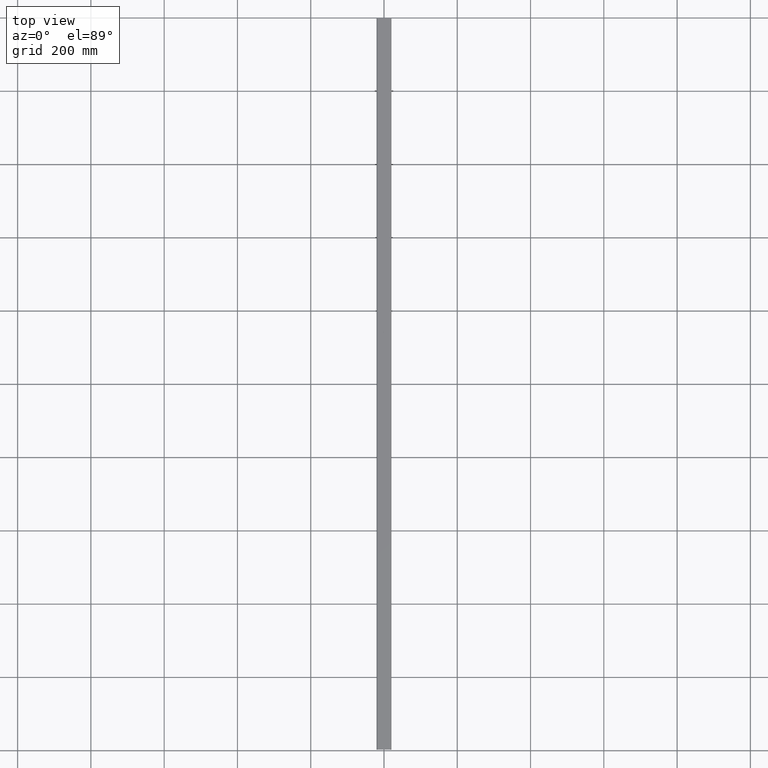
[diagram: clean part render]
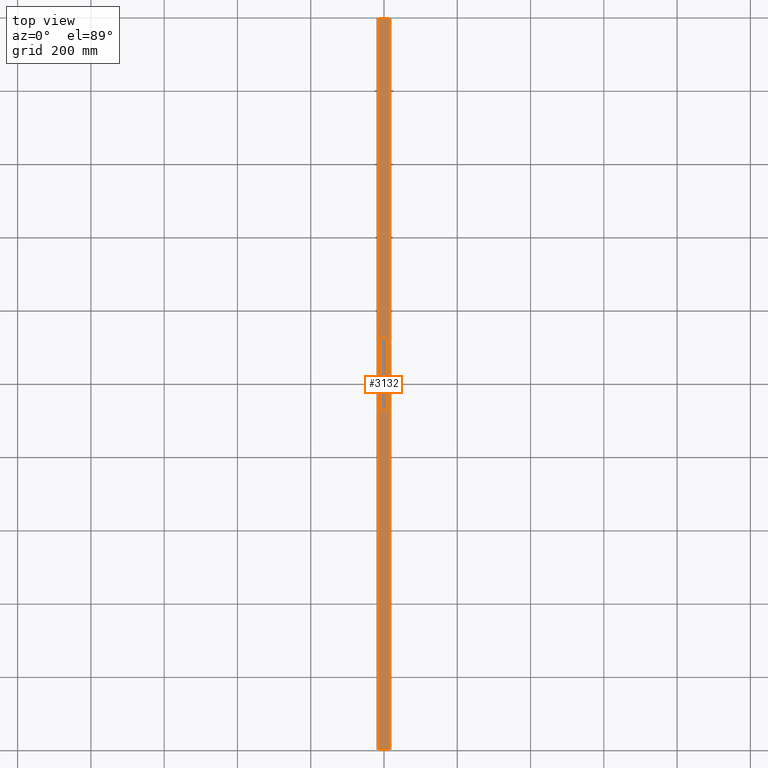
[diagram: same view with one face highlighted and labeled with its STEP entity id]
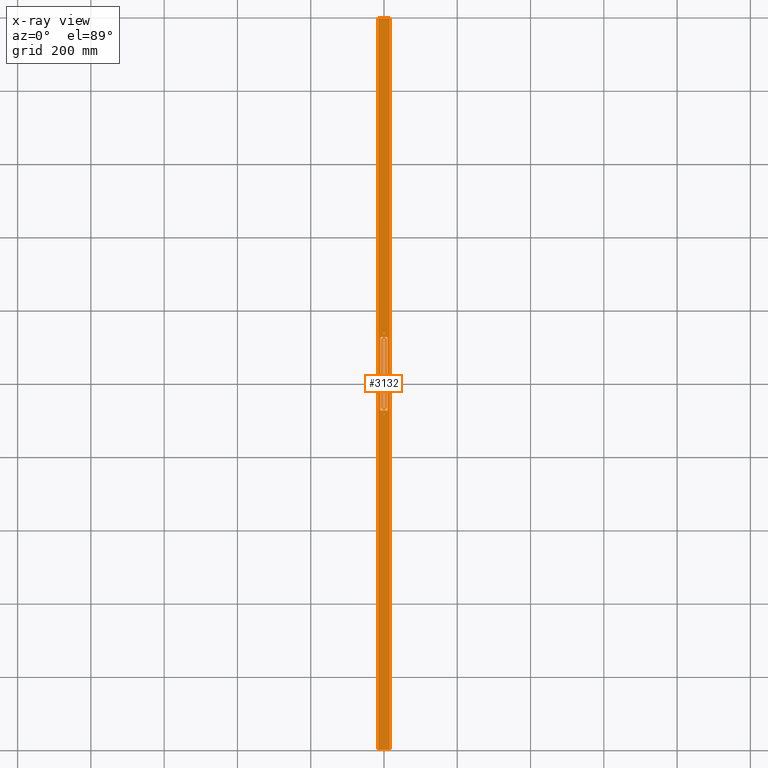
[diagram: x-ray of the same camera — body ghosted, the highlighted face saturated]
A machine part, top view. The second image highlights one B-rep face of the part: STEP entity #3132.
The next image is the same camera in x-ray: the body ghosted, the highlighted face saturated — about 0% of this face is hidden behind the body in this view.
In plain terms, the highlighted planar face has unit normal (0, 0, -1).
Its self-contained STEP definition (entity closure, byte-faithful):
#601 = EDGE_CURVE ( 'NONE', #11260, #2350, #6911, .T. ) ;
#610 = VECTOR ( 'NONE', #6466, 1000.000000000000000 ) ;
#670 = LINE ( 'NONE', #799, #10692 ) ;
#725 = DIRECTION ( 'NONE',  ( -1.000000000000000000, 0.000000000000000000, -0.000000000000000000 ) ) ;
#762 = LINE ( 'NONE', #10041, #610 ) ;
#799 = CARTESIAN_POINT ( 'NONE',  ( -16.00000000000000000, 997.5000000000000000, 29.99999999999999645 ) ) ;
#881 = CIRCLE ( 'NONE', #7858, 2.100000000000000089 ) ;
#1144 = ORIENTED_EDGE ( 'NONE', *, *, #601, .T. ) ;
#1234 = VERTEX_POINT ( 'NONE', #7532 ) ;
#1302 = CARTESIAN_POINT ( 'NONE',  ( 10.00000000000000355, -71.90000000000001990, 29.99999999999999645 ) ) ;
#1314 = EDGE_CURVE ( 'NONE', #8018, #8018, #881, .T. ) ;
#1455 = ORIENTED_EDGE ( 'NONE', *, *, #3969, .T. ) ;
#1596 = EDGE_LOOP ( 'NONE', ( #9468 ) ) ;
#1670 = VECTOR ( 'NONE', #1932, 1000.000000000000000 ) ;
#1932 = DIRECTION ( 'NONE',  ( 1.000000000000000000, 0.000000000000000000, 0.000000000000000000 ) ) ;
#2152 = VECTOR ( 'NONE', #9198, 1000.000000000000000 ) ;
#2350 = VERTEX_POINT ( 'NONE', #11622 ) ;
#2510 = CARTESIAN_POINT ( 'NONE',  ( -10.00000000000002132, 126.9000000000001194, 29.99999999999999645 ) ) ;
#2523 = EDGE_LOOP ( 'NONE', ( #1455, #8574, #10759, #1144 ) ) ;
#2597 = ORIENTED_EDGE ( 'NONE', *, *, #8179, .F. ) ;
#2658 = EDGE_LOOP ( 'NONE', ( #11834, #2597, #8528, #4378 ) ) ;
#2692 = VECTOR ( 'NONE', #10609, 1000.000000000000000 ) ;
#2780 = VECTOR ( 'NONE', #3112, 1000.000000000000000 ) ;
#2816 = CARTESIAN_POINT ( 'NONE',  ( 2.100000000000000089, -82.49999999999988631, 29.99999999999999645 ) ) ;
#2932 = VECTOR ( 'NONE', #4889, 1000.000000000000000 ) ;
#2960 = FACE_BOUND ( 'NONE', #11623, .T. ) ;
#3049 = AXIS2_PLACEMENT_3D ( 'NONE', #12577, #6669, #725 ) ;
#3112 = DIRECTION ( 'NONE',  ( 1.000000000000000000, 0.000000000000000000, 0.000000000000000000 ) ) ;
#3132 = ADVANCED_FACE ( 'NONE', ( #5592, #2960, #7270, #6055 ), #11538, .F. ) ;
#3261 = CARTESIAN_POINT ( 'NONE',  ( -10.00000000000002132, 126.9000000000001194, 29.99999999999999645 ) ) ;
#3484 = CARTESIAN_POINT ( 'NONE',  ( 0.000000000000000000, 138.5000000000001137, 29.99999999999999645 ) ) ;
#3757 = VERTEX_POINT ( 'NONE', #3261 ) ;
#3969 = EDGE_CURVE ( 'NONE', #2350, #12420, #4940, .T. ) ;
#4100 = EDGE_CURVE ( 'NONE', #10521, #12420, #762, .T. ) ;
#4209 = EDGE_CURVE ( 'NONE', #5228, #5228, #7387, .T. ) ;
#4232 = ORIENTED_EDGE ( 'NONE', *, *, #4209, .F. ) ;
#4378 = ORIENTED_EDGE ( 'NONE', *, *, #9579, .F. ) ;
#4421 = DIRECTION ( 'NONE',  ( -1.000000000000000000, -0.000000000000000000, -0.000000000000000000 ) ) ;
#4633 = CARTESIAN_POINT ( 'NONE',  ( 16.00000000000000711, 997.5000000000000000, 29.99999999999999289 ) ) ;
#4776 = CARTESIAN_POINT ( 'NONE',  ( -16.00000000000000000, -997.5000000000000000, 29.99999999999999645 ) ) ;
#4889 = DIRECTION ( 'NONE',  ( -0.000000000000000000, -1.000000000000000000, -0.000000000000000000 ) ) ;
#4940 = LINE ( 'NONE', #4776, #1670 ) ;
#4952 = VERTEX_POINT ( 'NONE', #5829 ) ;
#5228 = VERTEX_POINT ( 'NONE', #2816 ) ;
#5283 = VECTOR ( 'NONE', #4421, 1000.000000000000000 ) ;
#5592 = FACE_BOUND ( 'NONE', #1596, .T. ) ;
#5806 = DIRECTION ( 'NONE',  ( 1.000000000000000000, 0.000000000000000000, 0.000000000000000000 ) ) ;
#5829 = CARTESIAN_POINT ( 'NONE',  ( 10.00000000000002842, -73.09999999999988063, 29.99999999999999645 ) ) ;
#5890 = VERTEX_POINT ( 'NONE', #7457 ) ;
#6055 = FACE_OUTER_BOUND ( 'NONE', #2523, .T. ) ;
#6466 = DIRECTION ( 'NONE',  ( -0.000000000000000000, -1.000000000000000000, -0.000000000000000000 ) ) ;
#6669 = DIRECTION ( 'NONE',  ( 0.000000000000000000, 0.000000000000000000, -1.000000000000000000 ) ) ;
#6690 = DIRECTION ( 'NONE',  ( -0.000000000000000000, -0.000000000000000000, 1.000000000000000000 ) ) ;
#6911 = LINE ( 'NONE', #10508, #2692 ) ;
#7266 = LINE ( 'NONE', #12735, #2932 ) ;
#7270 = FACE_BOUND ( 'NONE', #2658, .T. ) ;
#7387 = CIRCLE ( 'NONE', #8948, 2.100000000000000089 ) ;
#7457 = CARTESIAN_POINT ( 'NONE',  ( -9.999999999999996447, -73.09999999999988063, 29.99999999999999645 ) ) ;
#7532 = CARTESIAN_POINT ( 'NONE',  ( 10.00000000000000178, 126.9000000000001194, 29.99999999999999645 ) ) ;
#7755 = CARTESIAN_POINT ( 'NONE',  ( 2.100000000000000089, 138.5000000000001137, 29.99999999999999645 ) ) ;
#7789 = EDGE_CURVE ( 'NONE', #11260, #10521, #670, .T. ) ;
#7858 = AXIS2_PLACEMENT_3D ( 'NONE', #3484, #11390, #12388 ) ;
#8018 = VERTEX_POINT ( 'NONE', #7755 ) ;
#8026 = CARTESIAN_POINT ( 'NONE',  ( -9.999999999999996447, -73.09999999999988063, 29.99999999999999645 ) ) ;
#8066 = LINE ( 'NONE', #8026, #2780 ) ;
#8179 = EDGE_CURVE ( 'NONE', #1234, #3757, #11285, .T. ) ;
#8528 = ORIENTED_EDGE ( 'NONE', *, *, #11617, .F. ) ;
#8574 = ORIENTED_EDGE ( 'NONE', *, *, #4100, .F. ) ;
#8633 = CARTESIAN_POINT ( 'NONE',  ( 0.000000000000000000, -82.49999999999988631, 29.99999999999999645 ) ) ;
#8677 = DIRECTION ( 'NONE',  ( 1.000000000000000000, 0.000000000000000000, 0.000000000000000000 ) ) ;
#8948 = AXIS2_PLACEMENT_3D ( 'NONE', #8633, #6690, #8677 ) ;
#9198 = DIRECTION ( 'NONE',  ( 0.000000000000000000, 1.000000000000000000, 0.000000000000000000 ) ) ;
#9269 = CARTESIAN_POINT ( 'NONE',  ( 16.00000000000000711, -997.5000000000000000, 29.99999999999999289 ) ) ;
#9468 = ORIENTED_EDGE ( 'NONE', *, *, #1314, .F. ) ;
#9579 = EDGE_CURVE ( 'NONE', #5890, #4952, #8066, .T. ) ;
#10041 = CARTESIAN_POINT ( 'NONE',  ( 16.00000000000000711, 997.5000000000000000, 29.99999999999999289 ) ) ;
#10044 = CARTESIAN_POINT ( 'NONE',  ( -16.00000000000000000, 997.5000000000000000, 29.99999999999999645 ) ) ;
#10146 = EDGE_CURVE ( 'NONE', #3757, #5890, #7266, .T. ) ;
#10173 = LINE ( 'NONE', #1302, #2152 ) ;
#10508 = CARTESIAN_POINT ( 'NONE',  ( -16.00000000000000000, 997.5000000000000000, 29.99999999999999645 ) ) ;
#10521 = VERTEX_POINT ( 'NONE', #4633 ) ;
#10609 = DIRECTION ( 'NONE',  ( -0.000000000000000000, -1.000000000000000000, -0.000000000000000000 ) ) ;
#10692 = VECTOR ( 'NONE', #5806, 1000.000000000000000 ) ;
#10759 = ORIENTED_EDGE ( 'NONE', *, *, #7789, .F. ) ;
#11260 = VERTEX_POINT ( 'NONE', #10044 ) ;
#11285 = LINE ( 'NONE', #2510, #5283 ) ;
#11390 = DIRECTION ( 'NONE',  ( -0.000000000000000000, -0.000000000000000000, 1.000000000000000000 ) ) ;
#11538 = PLANE ( 'NONE',  #3049 ) ;
#11617 = EDGE_CURVE ( 'NONE', #4952, #1234, #10173, .T. ) ;
#11622 = CARTESIAN_POINT ( 'NONE',  ( -16.00000000000000000, -997.5000000000000000, 29.99999999999999645 ) ) ;
#11623 = EDGE_LOOP ( 'NONE', ( #4232 ) ) ;
#11834 = ORIENTED_EDGE ( 'NONE', *, *, #10146, .F. ) ;
#12388 = DIRECTION ( 'NONE',  ( 1.000000000000000000, 0.000000000000000000, 0.000000000000000000 ) ) ;
#12420 = VERTEX_POINT ( 'NONE', #9269 ) ;
#12577 = CARTESIAN_POINT ( 'NONE',  ( -16.00000000000000000, 997.5000000000000000, 29.99999999999999645 ) ) ;
#12735 = CARTESIAN_POINT ( 'NONE',  ( -9.999999999999996447, -71.90000000000001990, 29.99999999999999645 ) ) ;